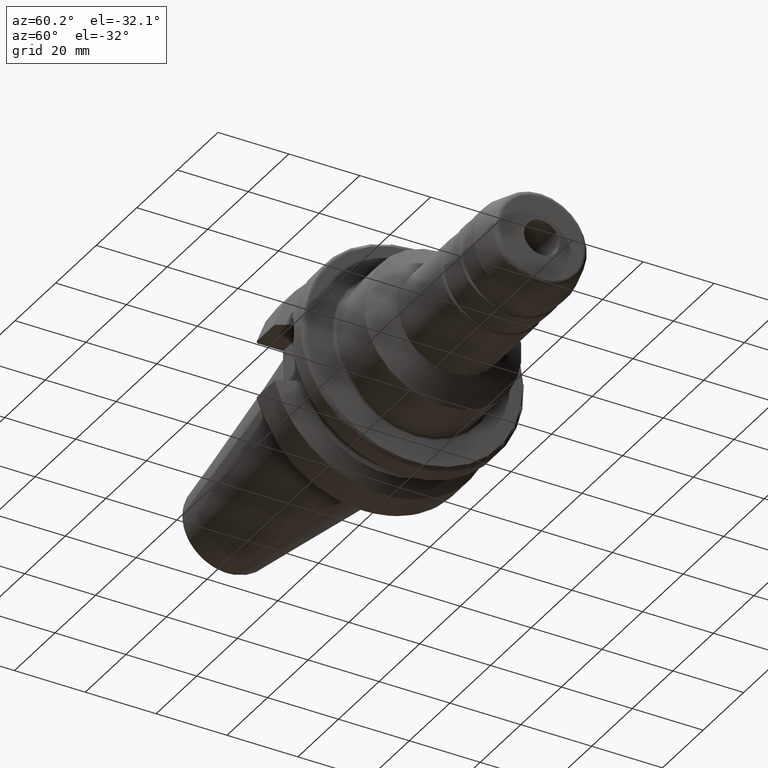
[diagram: clean part render]
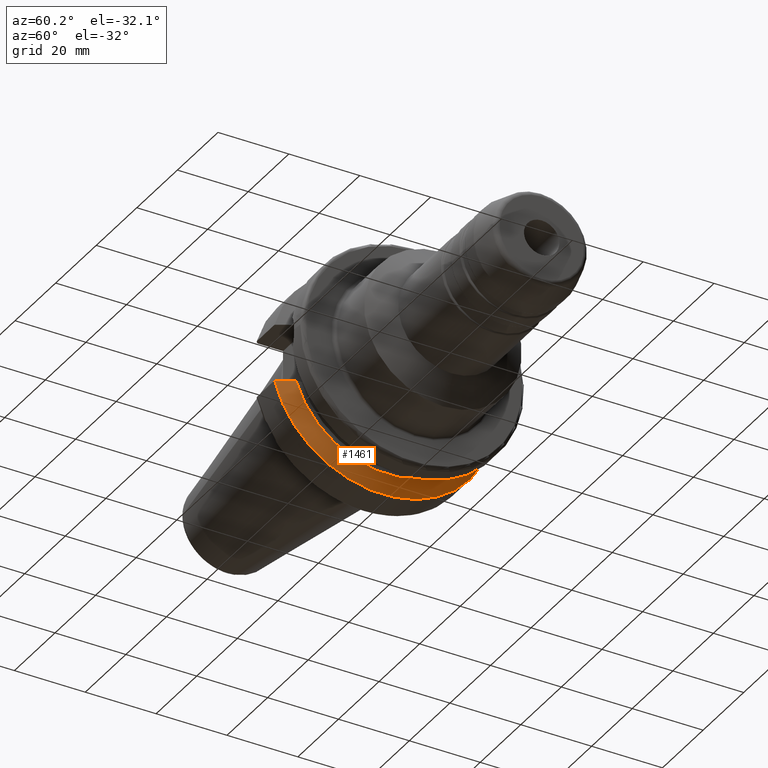
[diagram: same view with one face highlighted and labeled with its STEP entity id]
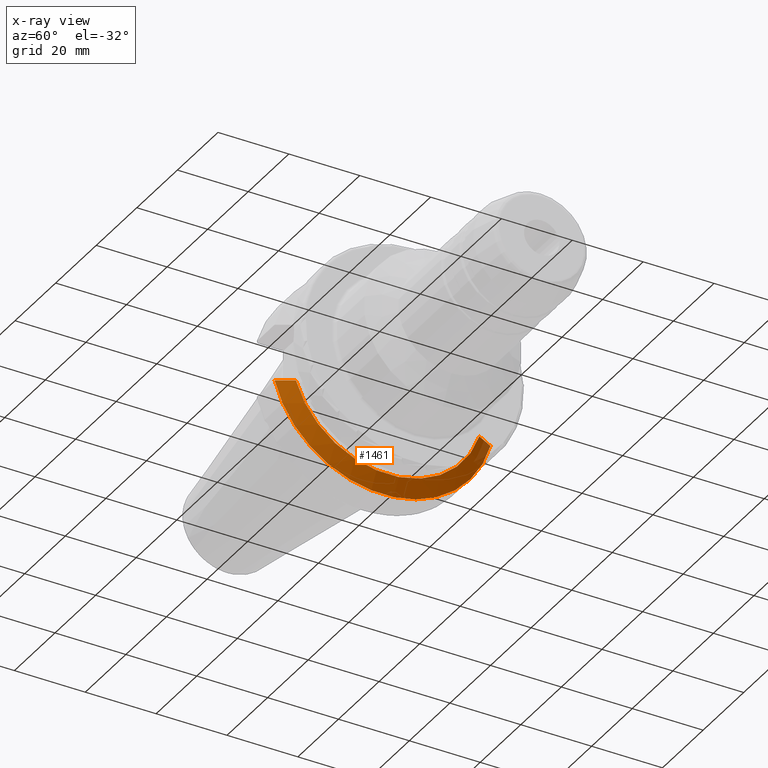
[diagram: x-ray of the same camera — body ghosted, the highlighted face saturated]
A machine part, auxiliary view. The second image highlights one B-rep face of the part: STEP entity #1461.
The next image is the same camera in x-ray: the body ghosted, the highlighted face saturated — about 3% of this face is hidden behind the body in this view.
In plain terms, the highlighted conical surface has half-angle 60.125 deg.
Its self-contained STEP definition (entity closure, byte-faithful):
#16=(
BOUNDED_CURVE()
B_SPLINE_CURVE(2,(#2699,#2700,#2701),.UNSPECIFIED.,.F.,.F.)
B_SPLINE_CURVE_WITH_KNOTS((3,3),(0.,0.523582790832811),.UNSPECIFIED.)
CURVE()
GEOMETRIC_REPRESENTATION_ITEM()
RATIONAL_B_SPLINE_CURVE((1.,1.0030736009757,1.))
REPRESENTATION_ITEM('')
);
#17=(
BOUNDED_CURVE()
B_SPLINE_CURVE(2,(#2756,#2757,#2758),.UNSPECIFIED.,.F.,.F.)
B_SPLINE_CURVE_WITH_KNOTS((3,3),(0.,0.523582790832811),.UNSPECIFIED.)
CURVE()
GEOMETRIC_REPRESENTATION_ITEM()
RATIONAL_B_SPLINE_CURVE((1.,1.0030736009757,1.))
REPRESENTATION_ITEM('')
);
#128=CONICAL_SURFACE('',#1661,29.2970358274569,1.0493792127616);
#197=FACE_OUTER_BOUND('',#297,.T.);
#297=EDGE_LOOP('',(#1228,#1229,#1230,#1231));
#544=CIRCLE('',#1660,27.0940716549138);
#545=CIRCLE('',#1662,31.5000000000001);
#670=VERTEX_POINT('',#2696);
#671=VERTEX_POINT('',#2698);
#680=VERTEX_POINT('',#2750);
#681=VERTEX_POINT('',#2754);
#857=EDGE_CURVE('',#671,#670,#16,.T.);
#873=EDGE_CURVE('',#671,#680,#544,.T.);
#875=EDGE_CURVE('',#670,#681,#545,.T.);
#876=EDGE_CURVE('',#681,#680,#17,.T.);
#1228=ORIENTED_EDGE('',*,*,#857,.T.);
#1229=ORIENTED_EDGE('',*,*,#875,.T.);
#1230=ORIENTED_EDGE('',*,*,#876,.T.);
#1231=ORIENTED_EDGE('',*,*,#873,.F.);
#1461=ADVANCED_FACE('',(#197),#128,.T.);
#1660=AXIS2_PLACEMENT_3D('',#2751,#2071,#2072);
#1661=AXIS2_PLACEMENT_3D('',#2753,#2074,#2075);
#1662=AXIS2_PLACEMENT_3D('',#2755,#2076,#2077);
#2071=DIRECTION('center_axis',(1.,0.,0.));
#2072=DIRECTION('ref_axis',(0.,0.,-1.));
#2074=DIRECTION('center_axis',(-1.,0.,0.));
#2075=DIRECTION('ref_axis',(0.,1.,0.));
#2076=DIRECTION('center_axis',(1.,0.,0.));
#2077=DIRECTION('ref_axis',(0.,0.,-1.));
#2696=CARTESIAN_POINT('',(11.5690363073382,-30.4540227227866,-8.05));
#2698=CARTESIAN_POINT('',(14.1,-25.8705666509569,-8.05));
#2699=CARTESIAN_POINT('Ctrl Pts',(14.1,-25.8705666509569,-8.05));
#2700=CARTESIAN_POINT('Ctrl Pts',(12.9374976962935,-27.9899702651817,-8.05));
#2701=CARTESIAN_POINT('Ctrl Pts',(11.5690363073382,-30.4540227227866,-8.05));
#2750=CARTESIAN_POINT('',(14.1,25.8705666509569,-8.05));
#2751=CARTESIAN_POINT('Origin',(14.1,0.,0.));
#2753=CARTESIAN_POINT('Origin',(12.8345181536691,0.,0.));
#2754=CARTESIAN_POINT('',(11.5690363073382,30.4540227227866,-8.05));
#2755=CARTESIAN_POINT('Origin',(11.5690363073382,0.,0.));
#2756=CARTESIAN_POINT('Ctrl Pts',(11.5690363073382,30.4540227227866,-8.05));
#2757=CARTESIAN_POINT('Ctrl Pts',(12.9374976962935,27.9899702651817,-8.05));
#2758=CARTESIAN_POINT('Ctrl Pts',(14.1,25.8705666509569,-8.05));